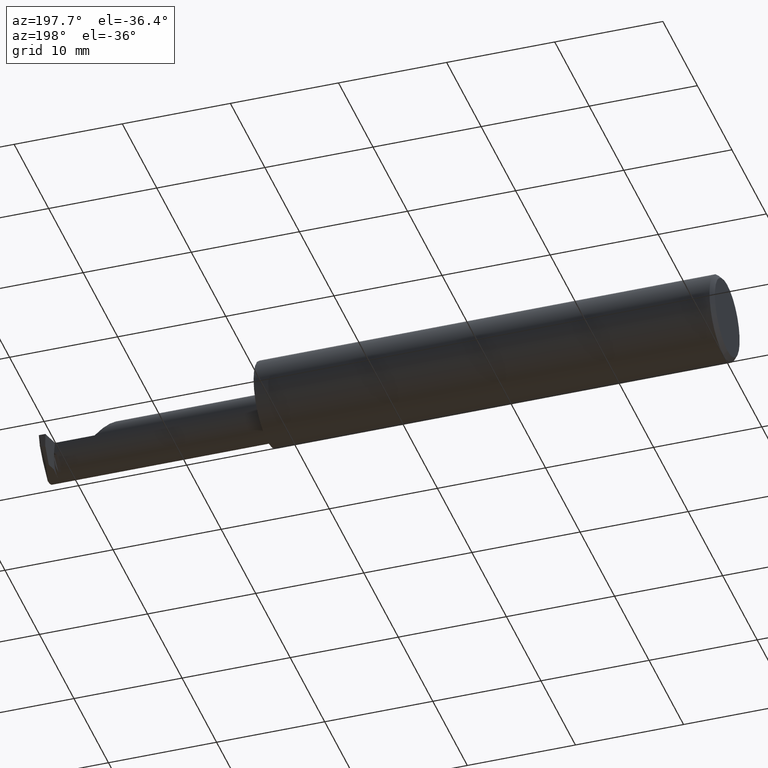
[diagram: clean part render]
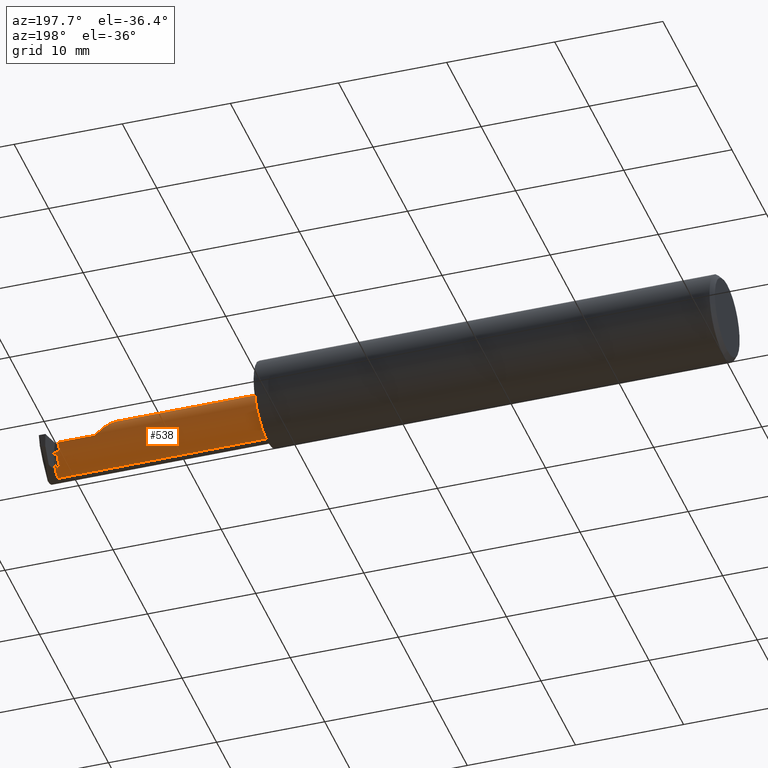
[diagram: same view with one face highlighted and labeled with its STEP entity id]
A machine part, auxiliary view. The second image highlights one B-rep face of the part: STEP entity #538.
In plain terms, the highlighted cylindrical surface (edge-blend (fillet) strip) has radius 2.2225 mm, axis along (-1, -0, -0).
Its self-contained STEP definition (entity closure, byte-faithful):
#7 = CARTESIAN_POINT ( 'NONE',  ( 1.675000000000000044, 0.01190000000000001473, -4.286122238378320280E-17 ) ) ;
#14 = CARTESIAN_POINT ( 'NONE',  ( 2.460971373209815294, -0.07560000000000001441, -0.08750000000000002220 ) ) ;
#17 = DIRECTION ( 'NONE',  ( 0.000000000000000000, 0.000000000000000000, 1.000000000000000000 ) ) ;
#19 = CARTESIAN_POINT ( 'NONE',  ( 2.431928916614725544, 0.01190000000000001647, -0.01216180653188870912 ) ) ;
#33 = LINE ( 'NONE', #828, #518 ) ;
#35 = VECTOR ( 'NONE', #300, 39.37007874015748143 ) ;
#44 = ORIENTED_EDGE ( 'NONE', *, *, #47, .F. ) ;
#47 = EDGE_CURVE ( 'NONE', #345, #243, #584, .T. ) ;
#83 = LINE ( 'NONE', #230, #470 ) ;
#85 = ORIENTED_EDGE ( 'NONE', *, *, #140, .F. ) ;
#89 = CARTESIAN_POINT ( 'NONE',  ( 2.212499999999999911, -0.07560000000000001441, 0.08750000000000002220 ) ) ;
#110 = CARTESIAN_POINT ( 'NONE',  ( 2.450987044514465474, 0.001198827012965008373, -0.04193077830702267306 ) ) ;
#128 = ORIENTED_EDGE ( 'NONE', *, *, #546, .T. ) ;
#140 = EDGE_CURVE ( 'NONE', #243, #847, #286, .T. ) ;
#144 = DIRECTION ( 'NONE',  ( -1.000000000000000000, -0.000000000000000000, -0.000000000000000000 ) ) ;
#157 = ORIENTED_EDGE ( 'NONE', *, *, #374, .T. ) ;
#159 = CARTESIAN_POINT ( 'NONE',  ( 2.450987044514465474, -0.04764222079116738756, -0.08291328350578192063 ) ) ;
#171 = EDGE_CURVE ( 'NONE', #668, #749, #589, .T. ) ;
#185 = DIRECTION ( 'NONE',  ( 0.000000000000000000, 0.000000000000000000, -1.000000000000000000 ) ) ;
#191 = LINE ( 'NONE', #677, #910 ) ;
#197 = VERTEX_POINT ( 'NONE', #14 ) ;
#199 = CARTESIAN_POINT ( 'NONE',  ( 2.212499999999999911, -0.02434368670764566409, 0.08750000000000006384 ) ) ;
#217 = EDGE_CURVE ( 'NONE', #321, #694, #517, .T. ) ;
#230 = CARTESIAN_POINT ( 'NONE',  ( 1.675000000000000044, -0.04764222079116749164, -0.08291328350578194839 ) ) ;
#233 = DIRECTION ( 'NONE',  ( -1.000000000000000000, -0.000000000000000000, -0.000000000000000000 ) ) ;
#236 = ORIENTED_EDGE ( 'NONE', *, *, #217, .F. ) ;
#243 = VERTEX_POINT ( 'NONE', #89 ) ;
#279 = FACE_OUTER_BOUND ( 'NONE', #682, .T. ) ;
#286 = LINE ( 'NONE', #496, #723 ) ;
#300 = DIRECTION ( 'NONE',  ( 1.000000000000000000, 0.000000000000000000, 0.000000000000000000 ) ) ;
#314 = ORIENTED_EDGE ( 'NONE', *, *, #868, .F. ) ;
#316 = CARTESIAN_POINT ( 'NONE',  ( 1.699999999999999956, -0.07560000000000001441, 0.000000000000000000 ) ) ;
#318 = EDGE_CURVE ( 'NONE', #497, #321, #191, .T. ) ;
#321 = VERTEX_POINT ( 'NONE', #531 ) ;
#330 = AXIS2_PLACEMENT_3D ( 'NONE', #712, #233, #17 ) ;
#335 = CARTESIAN_POINT ( 'NONE',  ( 2.450987044514465474, -0.04764222079116738756, -0.08291328350578192063 ) ) ;
#340 = CARTESIAN_POINT ( 'NONE',  ( 2.455776737842579660, -0.009880466550820794433, -0.06794561911473875893 ) ) ;
#345 = VERTEX_POINT ( 'NONE', #460 ) ;
#351 = CARTESIAN_POINT ( 'NONE',  ( 2.450206291691873872, 0.004508195240025947466, -0.03519839563653279907 ) ) ;
#353 = ORIENTED_EDGE ( 'NONE', *, *, #598, .T. ) ;
#360 = DIRECTION ( 'NONE',  ( -1.000000000000000000, -0.000000000000000000, -0.000000000000000000 ) ) ;
#362 = EDGE_LOOP ( 'NONE', ( #894, #314, #157, #764 ) ) ;
#374 = EDGE_CURVE ( 'NONE', #716, #668, #33, .T. ) ;
#376 = CYLINDRICAL_SURFACE ( 'NONE', #330, 0.08750000000000002220 ) ;
#377 = CARTESIAN_POINT ( 'NONE',  ( 2.427091140178673001, 0.004508195240025976089, -0.03519839563653264641 ) ) ;
#388 = CARTESIAN_POINT ( 'NONE',  ( 2.440987044514465687, -0.04764222079116747083, -0.08291328350578199002 ) ) ;
#410 = ORIENTED_EDGE ( 'NONE', *, *, #702, .T. ) ;
#425 = DIRECTION ( 'NONE',  ( 1.000000000000000000, 0.000000000000000000, 0.000000000000000000 ) ) ;
#457 = VERTEX_POINT ( 'NONE', #838 ) ;
#460 = CARTESIAN_POINT ( 'NONE',  ( 2.300000000000000266, 0.01190000000000008412, -4.286122238378320280E-17 ) ) ;
#461 = ORIENTED_EDGE ( 'NONE', *, *, #476, .F. ) ;
#470 = VECTOR ( 'NONE', #425, 39.37007874015748143 ) ;
#472 = CARTESIAN_POINT ( 'NONE',  ( 1.699999999999999956, -0.07560000000000001441, 0.08750000000000002220 ) ) ;
#476 = EDGE_CURVE ( 'NONE', #197, #497, #708, .T. ) ;
#482 = CARTESIAN_POINT ( 'NONE',  ( 2.459801557096684910, -0.03983109963022438832, -0.08750000000000002220 ) ) ;
#496 = CARTESIAN_POINT ( 'NONE',  ( 1.675000000000000044, -0.07560000000000001441, 0.08750000000000002220 ) ) ;
#497 = VERTEX_POINT ( 'NONE', #769 ) ;
#510 = CARTESIAN_POINT ( 'NONE',  ( 1.675000000000000044, -0.07560000000000000053, -0.08750000000000002220 ) ) ;
#517 =( BOUNDED_CURVE ( )  B_SPLINE_CURVE ( 3, ( #377, #729, #19, #576 ),
 .UNSPECIFIED., .F., .F. ) 
 B_SPLINE_CURVE_WITH_KNOTS ( ( 4, 4 ),
 ( 1.156804228221845365, 1.570796326794896780 ),
 .UNSPECIFIED. ) 
 CURVE ( )  GEOMETRIC_REPRESENTATION_ITEM ( )  RATIONAL_B_SPLINE_CURVE ( ( 1.000000000000000000, 0.9857684695413674314, 0.9857684695413674314, 1.000000000000000000 ) ) 
 REPRESENTATION_ITEM ( '' )  );
#518 = VECTOR ( 'NONE', #619, 39.37007874015748143 ) ;
#531 = CARTESIAN_POINT ( 'NONE',  ( 2.427091140178673001, 0.004508195240025976089, -0.03519839563653264641 ) ) ;
#533 = ORIENTED_EDGE ( 'NONE', *, *, #318, .F. ) ;
#538 = ADVANCED_FACE ( 'NONE', ( #920, #279 ), #376, .T. ) ;
#546 = EDGE_CURVE ( 'NONE', #345, #694, #869, .T. ) ;
#571 = AXIS2_PLACEMENT_3D ( 'NONE', #657, #733, #653 ) ;
#576 = CARTESIAN_POINT ( 'NONE',  ( 2.434482944938646920, 0.01190000000000008065, 0.000000000000000000 ) ) ;
#581 = CARTESIAN_POINT ( 'NONE',  ( 2.454251891129716867, -0.009474606326680734547, -0.06147983496139389908 ) ) ;
#584 =( BOUNDED_CURVE ( )  B_SPLINE_CURVE ( 3, ( #776, #699, #199, #636 ),
 .UNSPECIFIED., .F., .F. ) 
 B_SPLINE_CURVE_WITH_KNOTS ( ( 4, 4 ),
 ( 4.712388980384686121, 6.283185307179586232 ),
 .UNSPECIFIED. ) 
 CURVE ( )  GEOMETRIC_REPRESENTATION_ITEM ( )  RATIONAL_B_SPLINE_CURVE ( ( 1.000000000000000000, 0.8047378541243641603, 0.8047378541243641603, 1.000000000000000000 ) ) 
 REPRESENTATION_ITEM ( '' )  );
#589 = CIRCLE ( 'NONE', #571, 0.08750000000000002220 ) ;
#590 = CARTESIAN_POINT ( 'NONE',  ( 2.440987044514465687, 0.001198827012965008590, -0.04193077830702267306 ) ) ;
#591 = AXIS2_PLACEMENT_3D ( 'NONE', #316, #675, #185 ) ;
#592 = CARTESIAN_POINT ( 'NONE',  ( 2.454251891129716867, -0.02653673598498874908, -0.07579666166477903866 ) ) ;
#598 = EDGE_CURVE ( 'NONE', #197, #457, #659, .T. ) ;
#619 = DIRECTION ( 'NONE',  ( -1.000000000000000000, -0.000000000000000000, -0.000000000000000000 ) ) ;
#636 = CARTESIAN_POINT ( 'NONE',  ( 2.212499999999999911, -0.07560000000000001441, 0.08750000000000002220 ) ) ;
#650 = CIRCLE ( 'NONE', #591, 0.08750000000000002220 ) ;
#653 = DIRECTION ( 'NONE',  ( 0.000000000000000000, -1.756187995927025960E-15, -1.000000000000000000 ) ) ;
#655 = CARTESIAN_POINT ( 'NONE',  ( 2.434482944938646920, 0.01190000000000008065, 0.000000000000000000 ) ) ;
#657 = CARTESIAN_POINT ( 'NONE',  ( 2.440987044514465687, -0.07560000000000001441, 0.000000000000000000 ) ) ;
#659 = LINE ( 'NONE', #510, #684 ) ;
#668 = VERTEX_POINT ( 'NONE', #590 ) ;
#675 = DIRECTION ( 'NONE',  ( 1.000000000000000000, 0.000000000000000000, 0.000000000000000000 ) ) ;
#677 = CARTESIAN_POINT ( 'NONE',  ( 1.675000000000000044, 0.004508195240025706339, -0.03519839563653325704 ) ) ;
#682 = EDGE_LOOP ( 'NONE', ( #461, #353, #410, #85, #44, #128, #236, #533 ) ) ;
#684 = VECTOR ( 'NONE', #360, 39.37007874015748143 ) ;
#694 = VERTEX_POINT ( 'NONE', #655 ) ;
#699 = CARTESIAN_POINT ( 'NONE',  ( 2.248743686707645573, 0.01190000000000020902, 0.05125631329235402073 ) ) ;
#702 = EDGE_CURVE ( 'NONE', #457, #847, #650, .T. ) ;
#708 =( BOUNDED_CURVE ( )  B_SPLINE_CURVE ( 3, ( #916, #482, #340, #351 ),
 .UNSPECIFIED., .F., .T. ) 
 B_SPLINE_CURVE_WITH_KNOTS ( ( 4, 4 ),
 ( 3.348588702876322376, 4.505392931098165299 ),
 .UNSPECIFIED. ) 
 CURVE ( )  GEOMETRIC_REPRESENTATION_ITEM ( )  RATIONAL_B_SPLINE_CURVE ( ( 1.000000000000000000, 0.8915581742757288097, 0.8915581742757288097, 1.000000000000000000 ) ) 
 REPRESENTATION_ITEM ( '' )  );
#712 = CARTESIAN_POINT ( 'NONE',  ( 1.675000000000000044, -0.07560000000000001441, 0.000000000000000000 ) ) ;
#716 = VERTEX_POINT ( 'NONE', #110 ) ;
#723 = VECTOR ( 'NONE', #144, 39.37007874015748143 ) ;
#729 = CARTESIAN_POINT ( 'NONE',  ( 2.429429409888629987, 0.009400493273904695149, -0.02406399138364158016 ) ) ;
#733 = DIRECTION ( 'NONE',  ( -1.000000000000000000, -0.000000000000000000, -0.000000000000000000 ) ) ;
#749 = VERTEX_POINT ( 'NONE', #388 ) ;
#757 = DIRECTION ( 'NONE',  ( -1.000000000000000000, -0.000000000000000000, -0.000000000000000000 ) ) ;
#764 = ORIENTED_EDGE ( 'NONE', *, *, #171, .T. ) ;
#769 = CARTESIAN_POINT ( 'NONE',  ( 2.450206291691873872, 0.004508195240025947466, -0.03519839563653279907 ) ) ;
#776 = CARTESIAN_POINT ( 'NONE',  ( 2.300000000000000266, 0.01190000000000008412, -4.286122238378320280E-17 ) ) ;
#793 = CARTESIAN_POINT ( 'NONE',  ( 2.450987044514465474, 0.001198827012965008373, -0.04193077830702267306 ) ) ;
#804 = VERTEX_POINT ( 'NONE', #335 ) ;
#828 = CARTESIAN_POINT ( 'NONE',  ( 1.675000000000000044, 0.001198827012964987339, -0.04193077830702265224 ) ) ;
#838 = CARTESIAN_POINT ( 'NONE',  ( 1.699999999999999956, -0.07560000000000000053, -0.08750000000000002220 ) ) ;
#847 = VERTEX_POINT ( 'NONE', #472 ) ;
#868 = EDGE_CURVE ( 'NONE', #716, #804, #904, .T. ) ;
#869 = LINE ( 'NONE', #7, #35 ) ;
#894 = ORIENTED_EDGE ( 'NONE', *, *, #901, .T. ) ;
#901 = EDGE_CURVE ( 'NONE', #749, #804, #83, .T. ) ;
#904 =( BOUNDED_CURVE ( )  B_SPLINE_CURVE ( 3, ( #793, #581, #592, #159 ),
 .UNSPECIFIED., .F., .T. ) 
 B_SPLINE_CURVE_WITH_KNOTS ( ( 4, 4 ),
 ( 2.768681180091519423, 3.514504127088065921 ),
 .UNSPECIFIED. ) 
 CURVE ( )  GEOMETRIC_REPRESENTATION_ITEM ( )  RATIONAL_B_SPLINE_CURVE ( ( 1.000000000000000000, 0.9541803745534647163, 0.9541803745534647163, 1.000000000000000000 ) ) 
 REPRESENTATION_ITEM ( '' )  );
#910 = VECTOR ( 'NONE', #757, 39.37007874015748143 ) ;
#916 = CARTESIAN_POINT ( 'NONE',  ( 2.460971373209815294, -0.07560000000000001441, -0.08750000000000002220 ) ) ;
#920 = FACE_BOUND ( 'NONE', #362, .T. ) ;